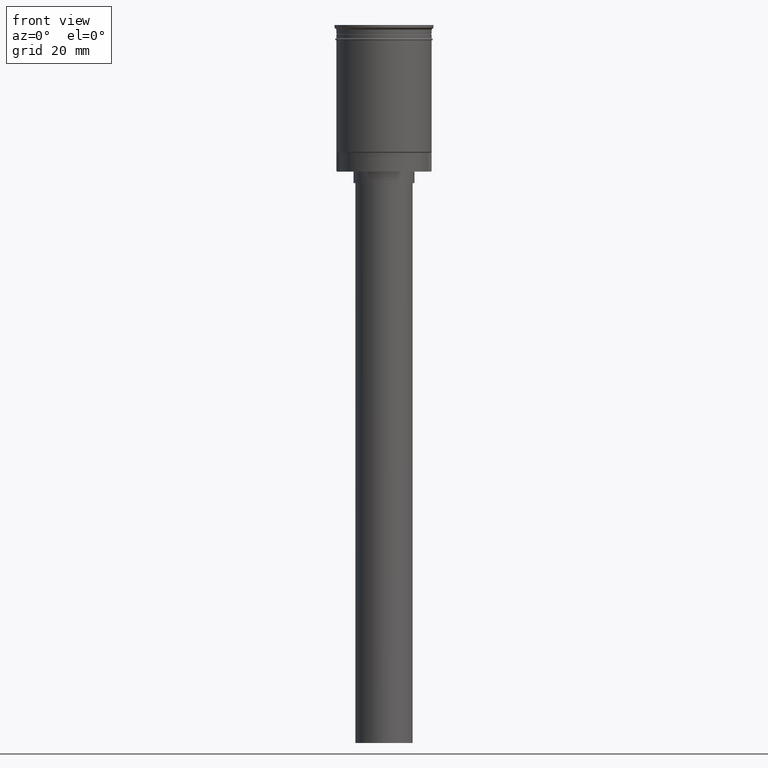
[diagram: clean part render]
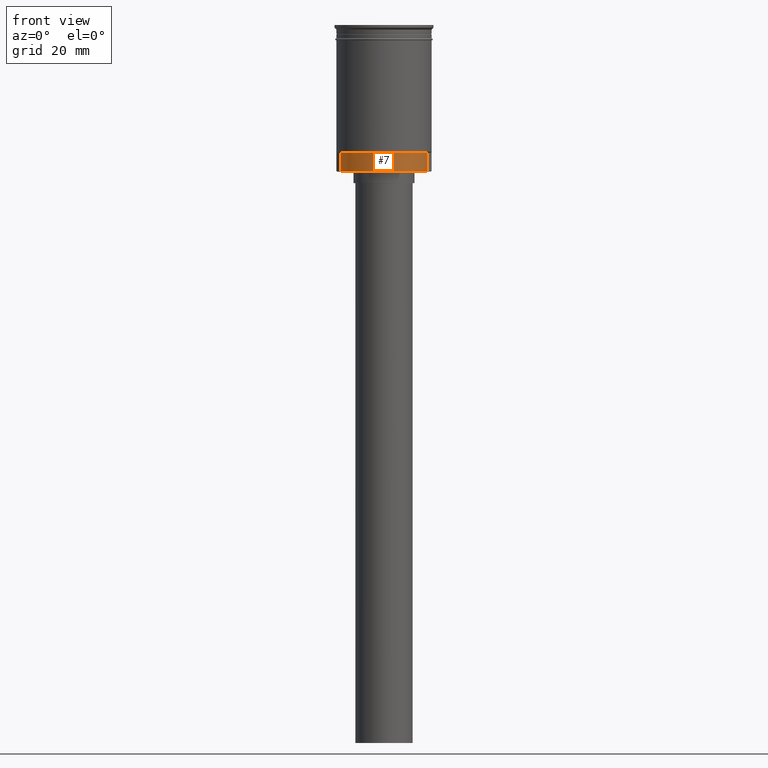
[diagram: same view with one face highlighted and labeled with its STEP entity id]
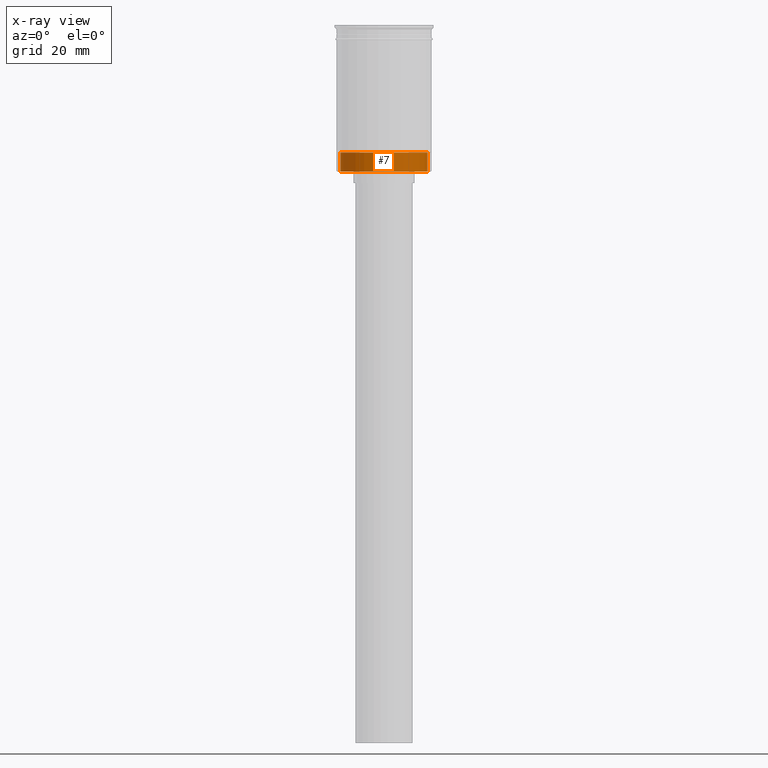
[diagram: x-ray of the same camera — body ghosted, the highlighted face saturated]
A machine part, front view. The second image highlights one B-rep face of the part: STEP entity #7.
The next image is the same camera in x-ray: the body ghosted, the highlighted face saturated — about 0% of this face is hidden behind the body in this view.
In plain terms, the highlighted cylindrical surface (partial cylindrical patch) has radius 11.55 mm, axis along (-0, -0, 1).
Its self-contained STEP definition (entity closure, byte-faithful):
#7 = ADVANCED_FACE ( 'NONE', ( #659 ), #795, .T. ) ;
#17 = EDGE_CURVE ( 'NONE', #1546, #1447, #972, .T. ) ;
#27 = CARTESIAN_POINT ( 'NONE',  ( 0.000000000000000000, 0.000000000000000000, -38.50000000000000000 ) ) ;
#41 = DIRECTION ( 'NONE',  ( -0.000000000000000000, -0.000000000000000000, 1.000000000000000000 ) ) ;
#94 = DIRECTION ( 'NONE',  ( 0.000000000000000000, 0.000000000000000000, -1.000000000000000000 ) ) ;
#158 = DIRECTION ( 'NONE',  ( -1.000000000000000000, 0.000000000000000000, 0.000000000000000000 ) ) ;
#189 = CARTESIAN_POINT ( 'NONE',  ( 0.000000000000000000, 0.000000000000000000, -33.50000000000000000 ) ) ;
#199 = VERTEX_POINT ( 'NONE', #1012 ) ;
#225 = CARTESIAN_POINT ( 'NONE',  ( 11.39766701030927543, -1.869675566002708900, -33.50000000000000000 ) ) ;
#287 = CARTESIAN_POINT ( 'NONE',  ( 0.000000000000000000, 0.000000000000000000, -38.50000000000000000 ) ) ;
#441 = ORIENTED_EDGE ( 'NONE', *, *, #17, .F. ) ;
#454 = VECTOR ( 'NONE', #889, 1000.000000000000000 ) ;
#494 = EDGE_CURVE ( 'NONE', #1447, #199, #1016, .T. ) ;
#496 = DIRECTION ( 'NONE',  ( -0.000000000000000000, -0.000000000000000000, 1.000000000000000000 ) ) ;
#566 = ORIENTED_EDGE ( 'NONE', *, *, #576, .T. ) ;
#576 = EDGE_CURVE ( 'NONE', #713, #199, #662, .T. ) ;
#578 = DIRECTION ( 'NONE',  ( -1.000000000000000000, 0.000000000000000000, 0.000000000000000000 ) ) ;
#582 = CARTESIAN_POINT ( 'NONE',  ( 11.39766701030927543, -1.869675566002708900, -38.50000000000000000 ) ) ;
#659 = FACE_OUTER_BOUND ( 'NONE', #1212, .T. ) ;
#662 = CIRCLE ( 'NONE', #1400, 11.54999999999999716 ) ;
#713 = VERTEX_POINT ( 'NONE', #225 ) ;
#745 = AXIS2_PLACEMENT_3D ( 'NONE', #27, #41, #1158 ) ;
#795 = CYLINDRICAL_SURFACE ( 'NONE', #745, 11.54999999999999716 ) ;
#873 = EDGE_CURVE ( 'NONE', #1546, #713, #1355, .T. ) ;
#889 = DIRECTION ( 'NONE',  ( -0.000000000000000000, -0.000000000000000000, 1.000000000000000000 ) ) ;
#960 = CARTESIAN_POINT ( 'NONE',  ( -11.39766701030927543, -1.869675566002713563, -38.50000000000000000 ) ) ;
#972 = CIRCLE ( 'NONE', #1373, 11.54999999999999716 ) ;
#1012 = CARTESIAN_POINT ( 'NONE',  ( -11.39766701030927543, -1.869675566002713563, -33.50000000000000000 ) ) ;
#1016 = LINE ( 'NONE', #1500, #454 ) ;
#1158 = DIRECTION ( 'NONE',  ( 1.000000000000000000, 0.000000000000000000, 0.000000000000000000 ) ) ;
#1164 = DIRECTION ( 'NONE',  ( 0.000000000000000000, 0.000000000000000000, -1.000000000000000000 ) ) ;
#1212 = EDGE_LOOP ( 'NONE', ( #566, #1390, #441, #1284 ) ) ;
#1254 = CARTESIAN_POINT ( 'NONE',  ( 11.39766701030927543, -1.869675566002708900, -38.50000000000000000 ) ) ;
#1284 = ORIENTED_EDGE ( 'NONE', *, *, #873, .T. ) ;
#1355 = LINE ( 'NONE', #1254, #1379 ) ;
#1373 = AXIS2_PLACEMENT_3D ( 'NONE', #287, #1164, #158 ) ;
#1379 = VECTOR ( 'NONE', #496, 1000.000000000000000 ) ;
#1390 = ORIENTED_EDGE ( 'NONE', *, *, #494, .F. ) ;
#1400 = AXIS2_PLACEMENT_3D ( 'NONE', #189, #94, #578 ) ;
#1447 = VERTEX_POINT ( 'NONE', #960 ) ;
#1500 = CARTESIAN_POINT ( 'NONE',  ( -11.39766701030927543, -1.869675566002713563, -38.50000000000000000 ) ) ;
#1546 = VERTEX_POINT ( 'NONE', #582 ) ;